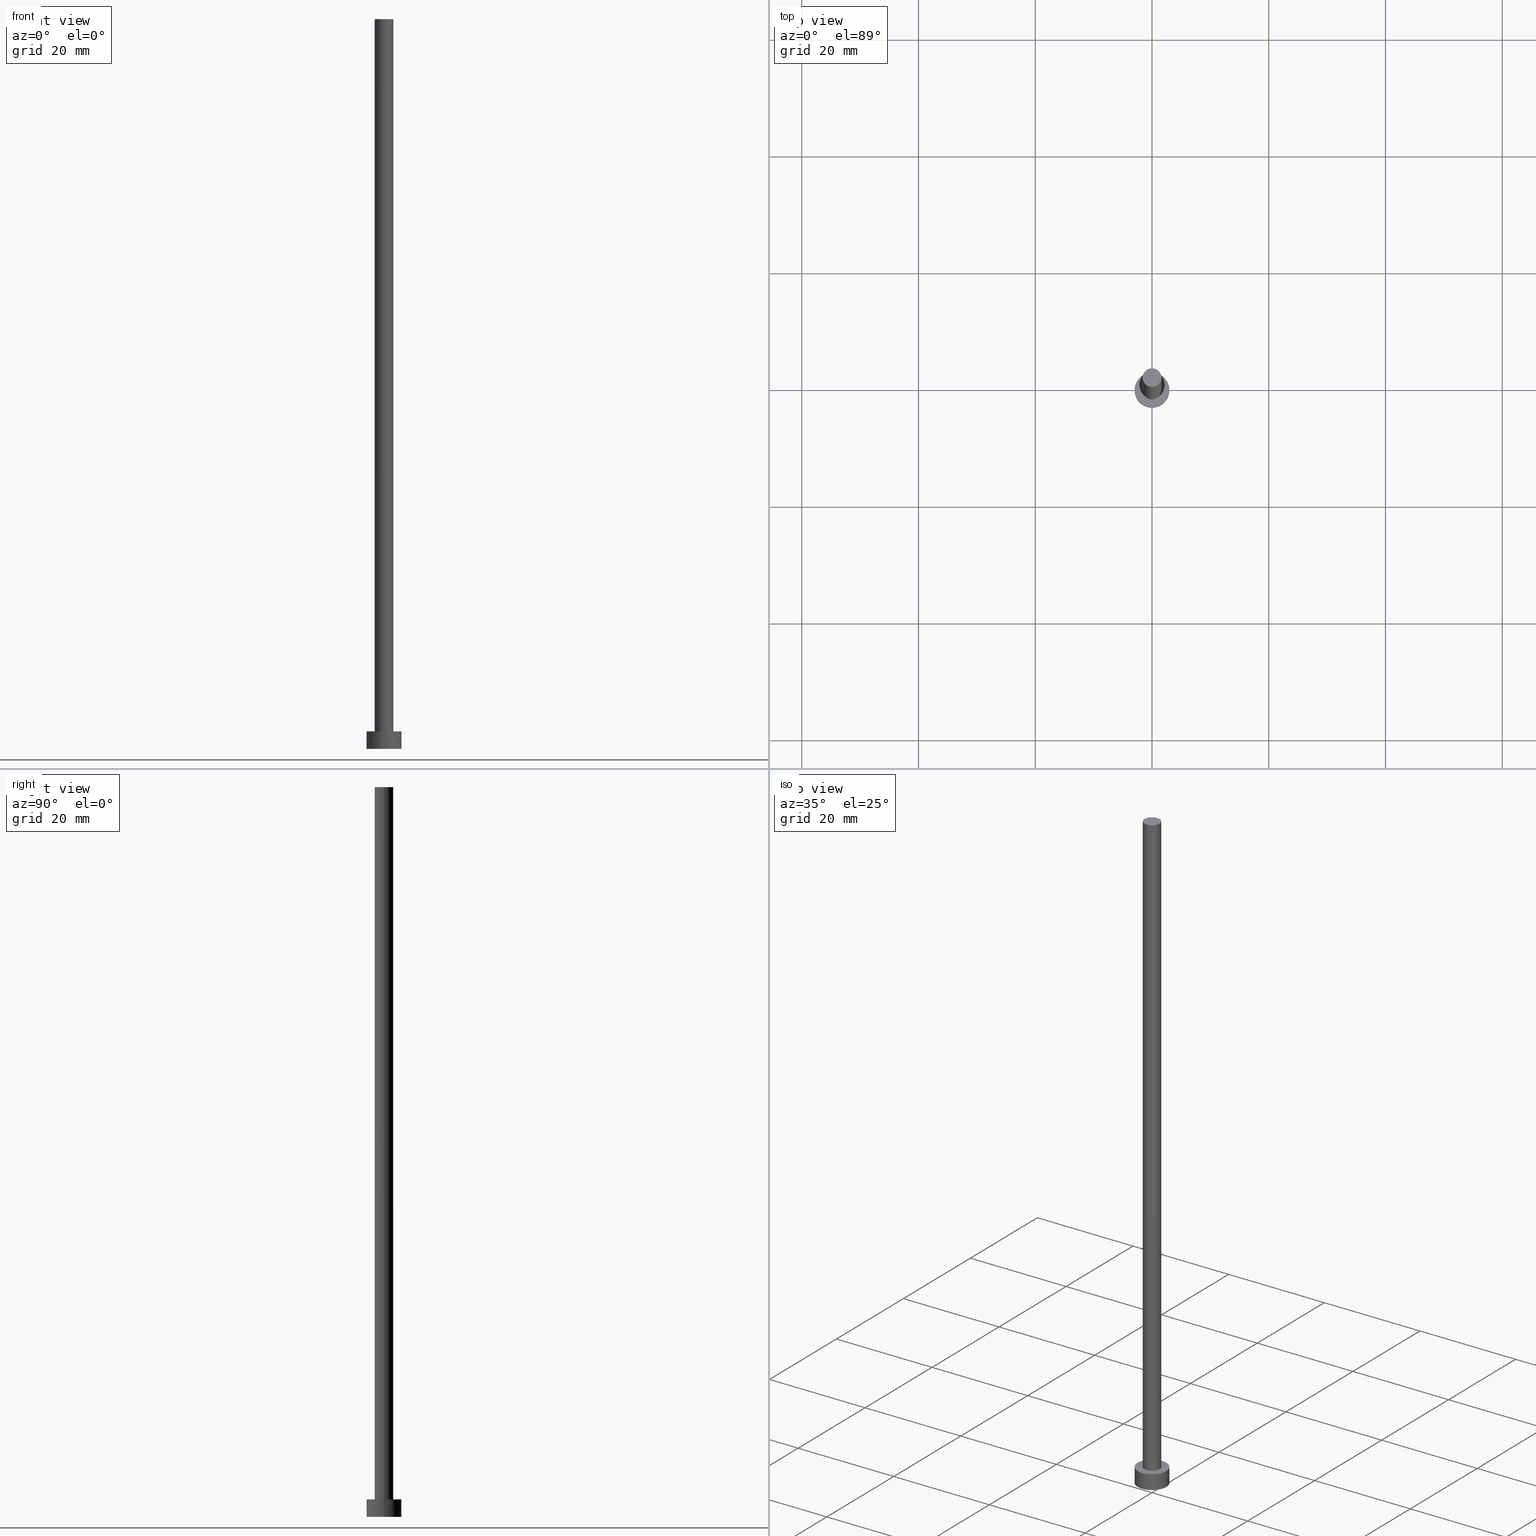
[diagram: canonical four-view strip — front | top / right | iso, engineering-drawing reading convention]
A machine part, canonical four-view strip (front | top / right | iso — engineering-drawing reading convention). The complete STEP part file that produces these views, byte-faithful:
ISO-10303-21;
HEADER;
FILE_DESCRIPTION (( 'STEP AP203' ),
    '1' );
FILE_NAME ('e24a.STEP',
    '2023-02-13T16:53:27',
    ( '' ),
    ( '' ),
    'SwSTEP 2.0',
    'SolidWorks 2019',
    '' );
FILE_SCHEMA (( 'CONFIG_CONTROL_DESIGN' ));
ENDSEC;

DATA;
#1 = APPROVAL_ROLE ( '' ) ;
#2 = CALENDAR_DATE ( 2023, 13, 2 ) ;
#3 = ORIENTED_EDGE ( 'NONE', *, *, #80, .T. ) ;
#4 = ADVANCED_FACE ( 'NONE', ( #122, #79 ), #233, .T. ) ;
#5 = AXIS2_PLACEMENT_3D ( 'NONE', #211, #192, #55 ) ;
#6 = APPROVAL_ROLE ( '' ) ;
#7 = VERTEX_POINT ( 'NONE', #28 ) ;
#8 = VERTEX_POINT ( 'NONE', #9 ) ;
#9 = CARTESIAN_POINT ( 'NONE',  ( -1.600000000000000089, 0.000000000000000000, 3.000000000000000000 ) ) ;
#10 = DIRECTION ( 'NONE',  ( 1.000000000000000000, 0.000000000000000000, -0.000000000000000000 ) ) ;
#11 = ADVANCED_FACE ( 'NONE', ( #14 ), #249, .T. ) ;
#12 = CIRCLE ( 'NONE', #185, 1.600000000000000089 ) ;
#13 = PRODUCT_RELATED_PRODUCT_CATEGORY ( 'detail', '', ( #232 ) ) ;
#14 = FACE_OUTER_BOUND ( 'NONE', #203, .T. ) ;
#15 = DIRECTION ( 'NONE',  ( -0.000000000000000000, -0.000000000000000000, -1.000000000000000000 ) ) ;
#16 = DIRECTION ( 'NONE',  ( -1.000000000000000000, 0.000000000000000000, 0.000000000000000000 ) ) ;
#17 = ADVANCED_FACE ( 'NONE', ( #146 ), #207, .T. ) ;
#18 = DIRECTION ( 'NONE',  ( 1.000000000000000000, 0.000000000000000000, 0.000000000000000000 ) ) ;
#19 = APPROVAL_PERSON_ORGANIZATION ( #251, #115, #1 ) ;
#20 = CARTESIAN_POINT ( 'NONE',  ( 0.000000000000000000, 0.000000000000000000, 125.0000000000000000 ) ) ;
#21 = APPROVAL_DATE_TIME ( #149, #115 ) ;
#22 = DIRECTION ( 'NONE',  ( 0.000000000000000000, 0.000000000000000000, 1.000000000000000000 ) ) ;
#23 = COORDINATED_UNIVERSAL_TIME_OFFSET ( 1, 0, .AHEAD. ) ;
#24 = ORIENTED_EDGE ( 'NONE', *, *, #165, .T. ) ;
#25 = CC_DESIGN_APPROVAL ( #43, ( #245 ) ) ;
#26 = EDGE_LOOP ( 'NONE', ( #121, #225, #83, #177 ) ) ;
#27 = LOCAL_TIME ( 17, 53, 27.00000000000000000, #110 ) ;
#28 = CARTESIAN_POINT ( 'NONE',  ( 3.000000000000000444, 3.673940397442060361E-16, 0.000000000000000000 ) ) ;
#29 = LINE ( 'NONE', #148, #46 ) ;
#30 = CARTESIAN_POINT ( 'NONE',  ( 0.000000000000000000, 0.000000000000000000, 125.0000000000000000 ) ) ;
#31 = AXIS2_PLACEMENT_3D ( 'NONE', #20, #15, #95 ) ;
#32 = DATE_TIME_ROLE ( 'classification_date' ) ;
#33 = EDGE_CURVE ( 'NONE', #144, #229, #29, .T. ) ;
#34 = DIRECTION ( 'NONE',  ( 0.000000000000000000, 0.000000000000000000, 1.000000000000000000 ) ) ;
#35 = CARTESIAN_POINT ( 'NONE',  ( 3.000000000000000444, 3.673940397442060361E-16, 3.000000000000000000 ) ) ;
#36 = CLOSED_SHELL ( 'NONE', ( #17, #195, #11, #4, #48, #254, #224 ) ) ;
#37 = COORDINATED_UNIVERSAL_TIME_OFFSET ( 1, 0, .AHEAD. ) ;
#38 = PERSON_AND_ORGANIZATION ( #220, #208 ) ;
#39 = ORIENTED_EDGE ( 'NONE', *, *, #143, .T. ) ;
#40 = PERSON_AND_ORGANIZATION ( #220, #208 ) ;
#41 = AXIS2_PLACEMENT_3D ( 'NONE', #91, #215, #114 ) ;
#42 = EDGE_LOOP ( 'NONE', ( #24, #39 ) ) ;
#43 = APPROVAL ( #241, 'NEUR�EN�' ) ;
#44 = ORIENTED_EDGE ( 'NONE', *, *, #94, .T. ) ;
#45 = ORIENTED_EDGE ( 'NONE', *, *, #94, .F. ) ;
#46 = VECTOR ( 'NONE', #231, 1000.000000000000000 ) ;
#47 = AXIS2_PLACEMENT_3D ( 'NONE', #131, #34, #238 ) ;
#48 = ADVANCED_FACE ( 'NONE', ( #184 ), #182, .F. ) ;
#49 = CARTESIAN_POINT ( 'NONE',  ( 0.000000000000000000, 0.000000000000000000, 3.000000000000000000 ) ) ;
#50 = CARTESIAN_POINT ( 'NONE',  ( 3.000000000000000444, 3.673940397442060361E-16, 3.000000000000000000 ) ) ;
#51 = CC_DESIGN_APPROVAL ( #115, ( #77 ) ) ;
#52 = COORDINATED_UNIVERSAL_TIME_OFFSET ( 1, 0, .AHEAD. ) ;
#53 = CARTESIAN_POINT ( 'NONE',  ( -1.600000000000000089, 0.000000000000000000, 125.0000000000000000 ) ) ;
#54 = AXIS2_PLACEMENT_3D ( 'NONE', #113, #22, #138 ) ;
#55 = DIRECTION ( 'NONE',  ( 1.000000000000000000, 0.000000000000000000, 0.000000000000000000 ) ) ;
#56 = CC_DESIGN_DATE_AND_TIME_ASSIGNMENT ( #219, #32, ( #77 ) ) ;
#57 = PERSON_AND_ORGANIZATION_ROLE ( 'design_supplier' ) ;
#58 = PERSON_AND_ORGANIZATION ( #220, #208 ) ;
#59 = PERSON_AND_ORGANIZATION_ROLE ( 'creator' ) ;
#60 = CALENDAR_DATE ( 2023, 13, 2 ) ;
#61 = PRODUCT_DEFINITION ( 'NEZN�M�', '', #245, #107 ) ;
#62 = CIRCLE ( 'NONE', #189, 1.600000000000000089 ) ;
#63 =( GEOMETRIC_REPRESENTATION_CONTEXT ( 3 ) GLOBAL_UNCERTAINTY_ASSIGNED_CONTEXT ( ( #123 ) ) GLOBAL_UNIT_ASSIGNED_CONTEXT ( ( #194, #151, #112 ) ) REPRESENTATION_CONTEXT ( 'NONE', 'WORKASPACE' ) );
#64 = ORIENTED_EDGE ( 'NONE', *, *, #102, .F. ) ;
#65 = DIRECTION ( 'NONE',  ( 0.000000000000000000, 0.000000000000000000, 1.000000000000000000 ) ) ;
#66 = DIRECTION ( 'NONE',  ( -1.000000000000000000, 0.000000000000000000, 0.000000000000000000 ) ) ;
#67 = CARTESIAN_POINT ( 'NONE',  ( 0.000000000000000000, 0.000000000000000000, 125.0000000000000000 ) ) ;
#68 = EDGE_CURVE ( 'NONE', #8, #229, #62, .T. ) ;
#69 = FACE_OUTER_BOUND ( 'NONE', #243, .T. ) ;
#70 = MANIFOLD_SOLID_BREP ( 'P�idat vysunut�m3', #36 ) ;
#71 = DIRECTION ( 'NONE',  ( -0.000000000000000000, -0.000000000000000000, -1.000000000000000000 ) ) ;
#72 = CARTESIAN_POINT ( 'NONE',  ( 0.000000000000000000, 0.000000000000000000, 0.000000000000000000 ) ) ;
#73 = CARTESIAN_POINT ( 'NONE',  ( -3.000000000000000444, 0.000000000000000000, 0.000000000000000000 ) ) ;
#74 = PERSON_AND_ORGANIZATION_ROLE ( 'classification_officer' ) ;
#75 = DATE_AND_TIME ( #2, #100 ) ;
#76 = VERTEX_POINT ( 'NONE', #166 ) ;
#77 = SECURITY_CLASSIFICATION ( '', '', #193 ) ;
#78 = PERSON_AND_ORGANIZATION ( #220, #208 ) ;
#79 = FACE_OUTER_BOUND ( 'NONE', #42, .T. ) ;
#80 = EDGE_CURVE ( 'NONE', #139, #144, #160, .T. ) ;
#81 = EDGE_LOOP ( 'NONE', ( #227, #103, #162, #45 ) ) ;
#82 = VERTEX_POINT ( 'NONE', #50 ) ;
#83 = ORIENTED_EDGE ( 'NONE', *, *, #180, .T. ) ;
#84 = CIRCLE ( 'NONE', #125, 3.000000000000000444 ) ;
#85 = LOCAL_TIME ( 17, 53, 27.00000000000000000, #37 ) ;
#86 = CC_DESIGN_DATE_AND_TIME_ASSIGNMENT ( #75, #118, ( #61 ) ) ;
#87 = DIRECTION ( 'NONE',  ( 0.000000000000000000, 0.000000000000000000, 1.000000000000000000 ) ) ;
#88 = DIRECTION ( 'NONE',  ( 0.000000000000000000, 0.000000000000000000, 1.000000000000000000 ) ) ;
#89 = CC_DESIGN_PERSON_AND_ORGANIZATION_ASSIGNMENT ( #96, #74, ( #77 ) ) ;
#90 = CYLINDRICAL_SURFACE ( 'NONE', #218, 3.000000000000000444 ) ;
#91 = CARTESIAN_POINT ( 'NONE',  ( 0.000000000000000000, 0.000000000000000000, 125.0000000000000000 ) ) ;
#92 = DIRECTION ( 'NONE',  ( 1.000000000000000000, 0.000000000000000000, 0.000000000000000000 ) ) ;
#93 = SHAPE_DEFINITION_REPRESENTATION ( #247, #167 ) ;
#94 = EDGE_CURVE ( 'NONE', #76, #142, #124, .T. ) ;
#95 = DIRECTION ( 'NONE',  ( -1.000000000000000000, 0.000000000000000000, 0.000000000000000000 ) ) ;
#96 = PERSON_AND_ORGANIZATION ( #220, #208 ) ;
#97 = APPROVAL_STATUS ( 'not_yet_approved' ) ;
#98 = PERSON_AND_ORGANIZATION_ROLE ( 'creator' ) ;
#99 = ORIENTED_EDGE ( 'NONE', *, *, #178, .F. ) ;
#100 = LOCAL_TIME ( 17, 53, 27.00000000000000000, #23 ) ;
#101 = ORIENTED_EDGE ( 'NONE', *, *, #165, .F. ) ;
#102 = EDGE_CURVE ( 'NONE', #7, #142, #84, .T. ) ;
#103 = ORIENTED_EDGE ( 'NONE', *, *, #242, .T. ) ;
#104 = CARTESIAN_POINT ( 'NONE',  ( 0.000000000000000000, 0.000000000000000000, 3.000000000000000000 ) ) ;
#105 = CARTESIAN_POINT ( 'NONE',  ( 0.000000000000000000, 0.000000000000000000, 3.000000000000000000 ) ) ;
#106 = EDGE_CURVE ( 'NONE', #139, #8, #236, .T. ) ;
#107 = DESIGN_CONTEXT ( 'detailed design', #129, 'design' ) ;
#108 = DIRECTION ( 'NONE',  ( 1.000000000000000000, 0.000000000000000000, -0.000000000000000000 ) ) ;
#109 = DIRECTION ( 'NONE',  ( -0.000000000000000000, -0.000000000000000000, -1.000000000000000000 ) ) ;
#110 = COORDINATED_UNIVERSAL_TIME_OFFSET ( 1, 0, .AHEAD. ) ;
#111 = VECTOR ( 'NONE', #109, 1000.000000000000000 ) ;
#112 =( NAMED_UNIT ( * ) SI_UNIT ( $, .STERADIAN. ) SOLID_ANGLE_UNIT ( ) );
#113 = CARTESIAN_POINT ( 'NONE',  ( 0.000000000000000000, 0.000000000000000000, 0.000000000000000000 ) ) ;
#114 = DIRECTION ( 'NONE',  ( 1.000000000000000000, 0.000000000000000000, 0.000000000000000000 ) ) ;
#115 = APPROVAL ( #190, 'NEUR�EN�' ) ;
#116 = CYLINDRICAL_SURFACE ( 'NONE', #31, 1.600000000000000089 ) ;
#117 = APPLICATION_PROTOCOL_DEFINITION ( 'international standard', 'config_control_design', 1994, #129 ) ;
#118 = DATE_TIME_ROLE ( 'creation_date' ) ;
#119 = EDGE_LOOP ( 'NONE', ( #228, #204 ) ) ;
#120 = DATE_AND_TIME ( #60, #85 ) ;
#121 = ORIENTED_EDGE ( 'NONE', *, *, #147, .F. ) ;
#122 = FACE_BOUND ( 'NONE', #119, .T. ) ;
#123 = UNCERTAINTY_MEASURE_WITH_UNIT (LENGTH_MEASURE( 1.000000000000000082E-05 ), #194, 'distance_accuracy_value', 'NONE');
#124 = LINE ( 'NONE', #206, #244 ) ;
#125 = AXIS2_PLACEMENT_3D ( 'NONE', #72, #237, #191 ) ;
#126 = CARTESIAN_POINT ( 'NONE',  ( 0.000000000000000000, 0.000000000000000000, 125.0000000000000000 ) ) ;
#127 = APPROVAL ( #97, 'NEUR�EN�' ) ;
#128 = PLANE ( 'NONE',  #135 ) ;
#129 = APPLICATION_CONTEXT ( 'configuration controlled 3d designs of mechanical parts and assemblies' ) ;
#130 = APPROVAL_PERSON_ORGANIZATION ( #221, #43, #140 ) ;
#131 = CARTESIAN_POINT ( 'NONE',  ( 0.000000000000000000, 0.000000000000000000, 0.000000000000000000 ) ) ;
#132 = CC_DESIGN_PERSON_AND_ORGANIZATION_ASSIGNMENT ( #40, #98, ( #61 ) ) ;
#133 = CALENDAR_DATE ( 2023, 13, 2 ) ;
#134 = CARTESIAN_POINT ( 'NONE',  ( 0.000000000000000000, 0.000000000000000000, 3.000000000000000000 ) ) ;
#135 = AXIS2_PLACEMENT_3D ( 'NONE', #67, #216, #173 ) ;
#136 = APPROVAL_DATE_TIME ( #199, #127 ) ;
#137 = CC_DESIGN_PERSON_AND_ORGANIZATION_ASSIGNMENT ( #239, #59, ( #245 ) ) ;
#138 = DIRECTION ( 'NONE',  ( 1.000000000000000000, 0.000000000000000000, 0.000000000000000000 ) ) ;
#139 = VERTEX_POINT ( 'NONE', #53 ) ;
#140 = APPROVAL_ROLE ( '' ) ;
#141 = EDGE_LOOP ( 'NONE', ( #99, #64 ) ) ;
#142 = VERTEX_POINT ( 'NONE', #73 ) ;
#143 = EDGE_CURVE ( 'NONE', #82, #76, #186, .T. ) ;
#144 = VERTEX_POINT ( 'NONE', #153 ) ;
#145 = CC_DESIGN_APPROVAL ( #127, ( #61 ) ) ;
#146 = FACE_OUTER_BOUND ( 'NONE', #26, .T. ) ;
#147 = EDGE_CURVE ( 'NONE', #144, #139, #213, .T. ) ;
#148 = CARTESIAN_POINT ( 'NONE',  ( 1.600000000000000089, 1.959434878635764737E-16, 125.0000000000000000 ) ) ;
#149 = DATE_AND_TIME ( #133, #230 ) ;
#150 = CARTESIAN_POINT ( 'NONE',  ( 0.000000000000000000, 0.000000000000000000, 3.000000000000000000 ) ) ;
#151 =( NAMED_UNIT ( * ) PLANE_ANGLE_UNIT ( ) SI_UNIT ( $, .RADIAN. ) );
#152 = CARTESIAN_POINT ( 'NONE',  ( 0.000000000000000000, 0.000000000000000000, 3.000000000000000000 ) ) ;
#153 = CARTESIAN_POINT ( 'NONE',  ( 1.600000000000000089, 1.959434878635764737E-16, 125.0000000000000000 ) ) ;
#154 = APPROVAL_PERSON_ORGANIZATION ( #78, #127, #6 ) ;
#155 = APPROVAL_DATE_TIME ( #120, #43 ) ;
#156 = ORIENTED_EDGE ( 'NONE', *, *, #33, .F. ) ;
#157 = MECHANICAL_CONTEXT ( 'NONE', #217, 'mechanical' ) ;
#158 = ORIENTED_EDGE ( 'NONE', *, *, #178, .T. ) ;
#159 = CC_DESIGN_PERSON_AND_ORGANIZATION_ASSIGNMENT ( #38, #57, ( #245 ) ) ;
#160 = CIRCLE ( 'NONE', #212, 1.600000000000000089 ) ;
#161 = VECTOR ( 'NONE', #71, 1000.000000000000000 ) ;
#162 = ORIENTED_EDGE ( 'NONE', *, *, #102, .T. ) ;
#163 = ORIENTED_EDGE ( 'NONE', *, *, #68, .T. ) ;
#164 = DIRECTION ( 'NONE',  ( -0.000000000000000000, -0.000000000000000000, -1.000000000000000000 ) ) ;
#165 = EDGE_CURVE ( 'NONE', #76, #82, #172, .T. ) ;
#166 = CARTESIAN_POINT ( 'NONE',  ( -3.000000000000000444, 0.000000000000000000, 3.000000000000000000 ) ) ;
#167 = ADVANCED_BREP_SHAPE_REPRESENTATION ( 'e24a', ( #70, #54 ), #63 ) ;
#168 = CC_DESIGN_SECURITY_CLASSIFICATION ( #77, ( #245 ) ) ;
#169 = DIRECTION ( 'NONE',  ( -0.000000000000000000, -0.000000000000000000, -1.000000000000000000 ) ) ;
#170 = FACE_OUTER_BOUND ( 'NONE', #81, .T. ) ;
#171 = AXIS2_PLACEMENT_3D ( 'NONE', #187, #65, #10 ) ;
#172 = CIRCLE ( 'NONE', #5, 3.000000000000000444 ) ;
#173 = DIRECTION ( 'NONE',  ( 1.000000000000000000, 0.000000000000000000, -0.000000000000000000 ) ) ;
#174 = CALENDAR_DATE ( 2023, 13, 2 ) ;
#175 = EDGE_LOOP ( 'NONE', ( #156, #240, #179, #163 ) ) ;
#176 = CIRCLE ( 'NONE', #47, 3.000000000000000444 ) ;
#177 = ORIENTED_EDGE ( 'NONE', *, *, #106, .F. ) ;
#178 = EDGE_CURVE ( 'NONE', #142, #7, #176, .T. ) ;
#179 = ORIENTED_EDGE ( 'NONE', *, *, #106, .T. ) ;
#180 = EDGE_CURVE ( 'NONE', #229, #8, #12, .T. ) ;
#181 = DIRECTION ( 'NONE',  ( 1.000000000000000000, 0.000000000000000000, 0.000000000000000000 ) ) ;
#182 = PLANE ( 'NONE',  #171 ) ;
#183 = AXIS2_PLACEMENT_3D ( 'NONE', #104, #164, #210 ) ;
#184 = FACE_OUTER_BOUND ( 'NONE', #141, .T. ) ;
#185 = AXIS2_PLACEMENT_3D ( 'NONE', #134, #196, #92 ) ;
#186 = CIRCLE ( 'NONE', #235, 3.000000000000000444 ) ;
#187 = CARTESIAN_POINT ( 'NONE',  ( 0.000000000000000000, 0.000000000000000000, 0.000000000000000000 ) ) ;
#188 = LINE ( 'NONE', #35, #111 ) ;
#189 = AXIS2_PLACEMENT_3D ( 'NONE', #49, #234, #181 ) ;
#190 = APPROVAL_STATUS ( 'not_yet_approved' ) ;
#191 = DIRECTION ( 'NONE',  ( 1.000000000000000000, 0.000000000000000000, 0.000000000000000000 ) ) ;
#192 = DIRECTION ( 'NONE',  ( 0.000000000000000000, 0.000000000000000000, 1.000000000000000000 ) ) ;
#193 = SECURITY_CLASSIFICATION_LEVEL ( 'unclassified' ) ;
#194 =( LENGTH_UNIT ( ) NAMED_UNIT ( * ) SI_UNIT ( .MILLI., .METRE. ) );
#195 = ADVANCED_FACE ( 'NONE', ( #170 ), #90, .T. ) ;
#196 = DIRECTION ( 'NONE',  ( 0.000000000000000000, 0.000000000000000000, 1.000000000000000000 ) ) ;
#197 = CALENDAR_DATE ( 2023, 13, 2 ) ;
#198 = COORDINATED_UNIVERSAL_TIME_OFFSET ( 1, 0, .AHEAD. ) ;
#199 = DATE_AND_TIME ( #174, #202 ) ;
#200 = ORIENTED_EDGE ( 'NONE', *, *, #242, .F. ) ;
#201 = AXIS2_PLACEMENT_3D ( 'NONE', #105, #87, #108 ) ;
#202 = LOCAL_TIME ( 17, 53, 27.00000000000000000, #198 ) ;
#203 = EDGE_LOOP ( 'NONE', ( #200, #101, #44, #158 ) ) ;
#204 = ORIENTED_EDGE ( 'NONE', *, *, #180, .F. ) ;
#205 = DIRECTION ( 'NONE',  ( 0.000000000000000000, 0.000000000000000000, 1.000000000000000000 ) ) ;
#206 = CARTESIAN_POINT ( 'NONE',  ( -3.000000000000000444, 0.000000000000000000, 3.000000000000000000 ) ) ;
#207 = CYLINDRICAL_SURFACE ( 'NONE', #226, 1.600000000000000089 ) ;
#208 = ORGANIZATION ( 'NEUR�EN�', 'NEUR�EN�', '' ) ;
#209 = CC_DESIGN_PERSON_AND_ORGANIZATION_ASSIGNMENT ( #58, #222, ( #232 ) ) ;
#210 = DIRECTION ( 'NONE',  ( -1.000000000000000000, 0.000000000000000000, 0.000000000000000000 ) ) ;
#211 = CARTESIAN_POINT ( 'NONE',  ( 0.000000000000000000, 0.000000000000000000, 3.000000000000000000 ) ) ;
#212 = AXIS2_PLACEMENT_3D ( 'NONE', #126, #205, #246 ) ;
#213 = CIRCLE ( 'NONE', #41, 1.600000000000000089 ) ;
#214 = CARTESIAN_POINT ( 'NONE',  ( 1.600000000000000089, 1.959434878635764737E-16, 3.000000000000000000 ) ) ;
#215 = DIRECTION ( 'NONE',  ( 0.000000000000000000, 0.000000000000000000, 1.000000000000000000 ) ) ;
#216 = DIRECTION ( 'NONE',  ( 0.000000000000000000, 0.000000000000000000, 1.000000000000000000 ) ) ;
#217 = APPLICATION_CONTEXT ( 'configuration controlled 3d designs of mechanical parts and assemblies' ) ;
#218 = AXIS2_PLACEMENT_3D ( 'NONE', #150, #169, #16 ) ;
#219 = DATE_AND_TIME ( #197, #27 ) ;
#220 = PERSON ( 'NEUR�EN�', 'NEUR�EN�', 'NEUR�EN�', ('NEUR�EN�'), ('NEUR�EN�'), ('NEUR�EN�') ) ;
#221 = PERSON_AND_ORGANIZATION ( #220, #208 ) ;
#222 = PERSON_AND_ORGANIZATION_ROLE ( 'design_owner' ) ;
#223 = ORIENTED_EDGE ( 'NONE', *, *, #147, .T. ) ;
#224 = ADVANCED_FACE ( 'NONE', ( #69 ), #128, .T. ) ;
#225 = ORIENTED_EDGE ( 'NONE', *, *, #33, .T. ) ;
#226 = AXIS2_PLACEMENT_3D ( 'NONE', #30, #248, #66 ) ;
#227 = ORIENTED_EDGE ( 'NONE', *, *, #143, .F. ) ;
#228 = ORIENTED_EDGE ( 'NONE', *, *, #68, .F. ) ;
#229 = VERTEX_POINT ( 'NONE', #214 ) ;
#230 = LOCAL_TIME ( 17, 53, 27.00000000000000000, #52 ) ;
#231 = DIRECTION ( 'NONE',  ( -0.000000000000000000, -0.000000000000000000, -1.000000000000000000 ) ) ;
#232 = PRODUCT ( 'e24a', 'e24a', '', ( #157 ) ) ;
#233 = PLANE ( 'NONE',  #201 ) ;
#234 = DIRECTION ( 'NONE',  ( 0.000000000000000000, 0.000000000000000000, 1.000000000000000000 ) ) ;
#235 = AXIS2_PLACEMENT_3D ( 'NONE', #152, #88, #18 ) ;
#236 = LINE ( 'NONE', #250, #161 ) ;
#237 = DIRECTION ( 'NONE',  ( 0.000000000000000000, 0.000000000000000000, 1.000000000000000000 ) ) ;
#238 = DIRECTION ( 'NONE',  ( 1.000000000000000000, 0.000000000000000000, 0.000000000000000000 ) ) ;
#239 = PERSON_AND_ORGANIZATION ( #220, #208 ) ;
#240 = ORIENTED_EDGE ( 'NONE', *, *, #80, .F. ) ;
#241 = APPROVAL_STATUS ( 'not_yet_approved' ) ;
#242 = EDGE_CURVE ( 'NONE', #82, #7, #188, .T. ) ;
#243 = EDGE_LOOP ( 'NONE', ( #3, #223 ) ) ;
#244 = VECTOR ( 'NONE', #255, 1000.000000000000000 ) ;
#245 = PRODUCT_DEFINITION_FORMATION_WITH_SPECIFIED_SOURCE ( 'LIBOVOLN�', '', #232, .NOT_KNOWN. ) ;
#246 = DIRECTION ( 'NONE',  ( 1.000000000000000000, 0.000000000000000000, 0.000000000000000000 ) ) ;
#247 = PRODUCT_DEFINITION_SHAPE ( 'NONE', 'NONE',  #61 ) ;
#248 = DIRECTION ( 'NONE',  ( -0.000000000000000000, -0.000000000000000000, -1.000000000000000000 ) ) ;
#249 = CYLINDRICAL_SURFACE ( 'NONE', #183, 3.000000000000000444 ) ;
#250 = CARTESIAN_POINT ( 'NONE',  ( -1.600000000000000089, 0.000000000000000000, 125.0000000000000000 ) ) ;
#251 = PERSON_AND_ORGANIZATION ( #220, #208 ) ;
#252 = APPLICATION_PROTOCOL_DEFINITION ( 'international standard', 'config_control_design', 1994, #217 ) ;
#253 = FACE_OUTER_BOUND ( 'NONE', #175, .T. ) ;
#254 = ADVANCED_FACE ( 'NONE', ( #253 ), #116, .T. ) ;
#255 = DIRECTION ( 'NONE',  ( -0.000000000000000000, -0.000000000000000000, -1.000000000000000000 ) ) ;
ENDSEC;
END-ISO-10303-21;
